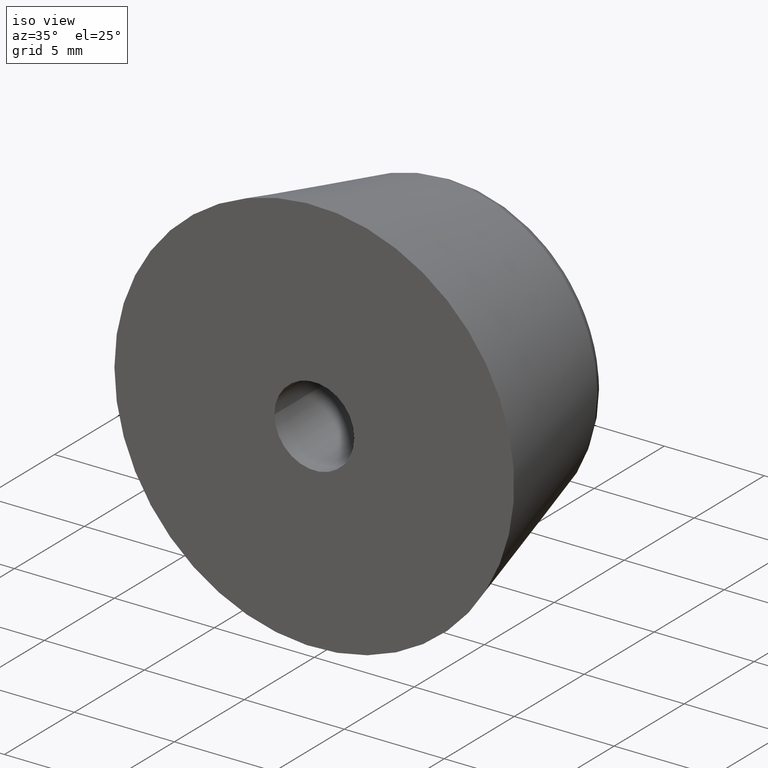
[diagram: clean part render]
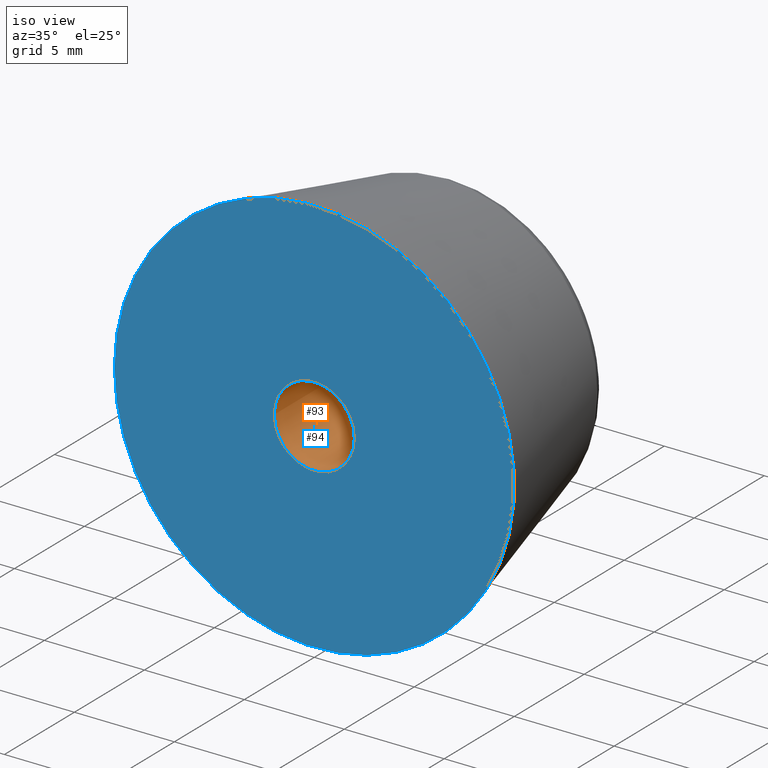
[diagram: same view with the hole feature highlighted: cylindrical wall and planar end face, labeled with their STEP entity ids]
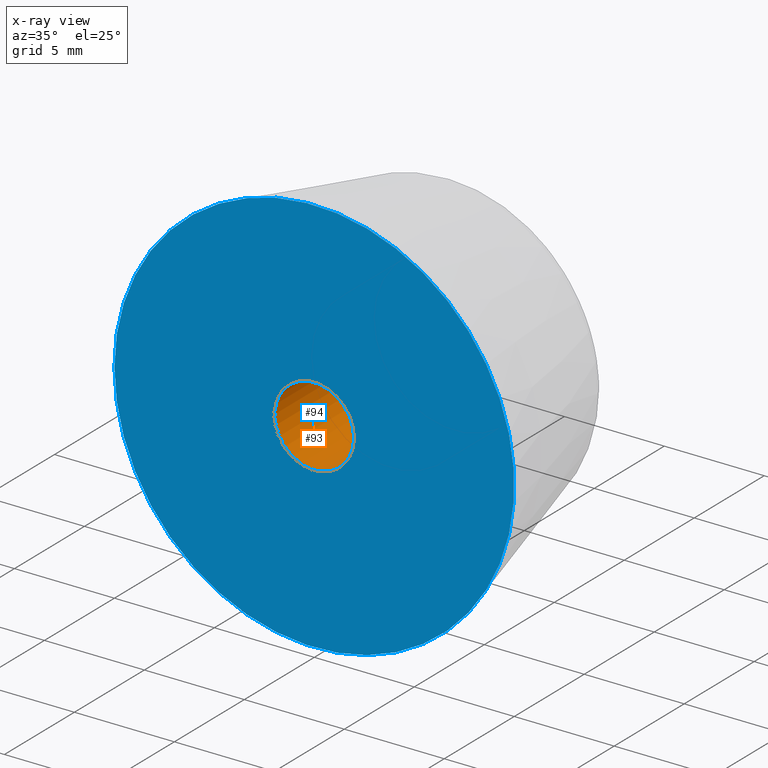
[diagram: x-ray of the same camera — body ghosted, the hole faces saturated]
A machine part, iso view. The highlighted faces form one hole feature of diameter 4 mm: the cylindrical wall (entity #93, orange) and its adjacent planar end face (entity #94, blue) — they share a circular edge in the B-rep.
The next image is the same camera in x-ray (body ghosted, the hole faces saturated) — the bore reads through the body.
Wall:
#19=CYLINDRICAL_SURFACE('',#108,2.);
#29=FACE_BOUND('',#49,.T.);
#36=FACE_OUTER_BOUND('',#48,.T.);
#48=EDGE_LOOP('',(#83));
#49=EDGE_LOOP('',(#84));
#57=CIRCLE('',#106,2.);
#58=CIRCLE('',#109,2.);
#64=VERTEX_POINT('',#156);
#65=VERTEX_POINT('',#160);
#71=EDGE_CURVE('',#64,#64,#57,.T.);
#72=EDGE_CURVE('',#65,#65,#58,.T.);
#83=ORIENTED_EDGE('',*,*,#72,.F.);
#84=ORIENTED_EDGE('',*,*,#71,.T.);
#93=ADVANCED_FACE('',(#36,#29),#19,.F.);
#106=AXIS2_PLACEMENT_3D('',#157,#131,#132);
#108=AXIS2_PLACEMENT_3D('',#159,#135,#136);
#109=AXIS2_PLACEMENT_3D('',#161,#137,#138);
#131=DIRECTION('center_axis',(0.,1.,0.));
#132=DIRECTION('ref_axis',(1.,0.,0.));
#135=DIRECTION('center_axis',(0.,1.,0.));
#136=DIRECTION('ref_axis',(1.,0.,0.));
#137=DIRECTION('center_axis',(0.,1.,0.));
#138=DIRECTION('ref_axis',(1.,0.,0.));
#156=CARTESIAN_POINT('',(-2.,5.5,2.44929359829471E-16));
#157=CARTESIAN_POINT('Origin',(0.,5.5,0.));
#159=CARTESIAN_POINT('Origin',(0.,-20.,0.));
#160=CARTESIAN_POINT('',(-2.,0.,2.44929359829471E-16));
#161=CARTESIAN_POINT('Origin',(0.,0.,0.));
End face:
#23=PLANE('',#110);
#30=FACE_BOUND('',#51,.T.);
#37=FACE_OUTER_BOUND('',#50,.T.);
#50=EDGE_LOOP('',(#85));
#51=EDGE_LOOP('',(#86));
#55=CIRCLE('',#103,10.);
#58=CIRCLE('',#109,2.);
#62=VERTEX_POINT('',#151);
#65=VERTEX_POINT('',#160);
#69=EDGE_CURVE('',#62,#62,#55,.T.);
#72=EDGE_CURVE('',#65,#65,#58,.T.);
#85=ORIENTED_EDGE('',*,*,#69,.F.);
#86=ORIENTED_EDGE('',*,*,#72,.T.);
#94=ADVANCED_FACE('',(#37,#30),#23,.F.);
#103=AXIS2_PLACEMENT_3D('',#152,#125,#126);
#109=AXIS2_PLACEMENT_3D('',#161,#137,#138);
#110=AXIS2_PLACEMENT_3D('',#162,#139,#140);
#125=DIRECTION('center_axis',(0.,1.,0.));
#126=DIRECTION('ref_axis',(1.,0.,0.));
#137=DIRECTION('center_axis',(0.,1.,0.));
#138=DIRECTION('ref_axis',(1.,0.,0.));
#139=DIRECTION('center_axis',(0.,1.,0.));
#140=DIRECTION('ref_axis',(0.,0.,1.));
#151=CARTESIAN_POINT('',(-10.,-8.65917475155937E-33,1.22464679914735E-15));
#152=CARTESIAN_POINT('Origin',(0.,0.,0.));
#160=CARTESIAN_POINT('',(-2.,0.,2.44929359829471E-16));
#161=CARTESIAN_POINT('Origin',(0.,0.,0.));
#162=CARTESIAN_POINT('Origin',(0.,0.,0.));